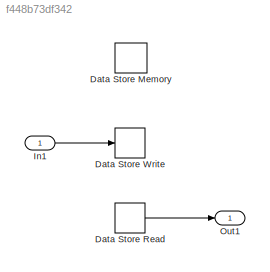
MODEL slx_f448b73df342
KIND model
BLOCK [DataStoreMemory] Data Store Memory
  ReadBeforeWriteMsg = warning
  StateMustResolveToSignalObject = on
  WriteAfterReadMsg = warning
  WriteAfterWriteMsg = warning
BLOCK [DataStoreRead] Data Store Read
  Ports = [0, 1]
BLOCK [DataStoreWrite] Data Store Write
  Ports = [1]
BLOCK [Inport] In1
  IconDisplay = Port number
  OutDataTypeStr = fixdt32_8
BLOCK [Outport] Out1
  IconDisplay = Port number
  OutDataTypeStr = fixdt32_8
LINE Data Store Read:1 -> Out1:1
LINE In1:1 -> Data Store Write:1
